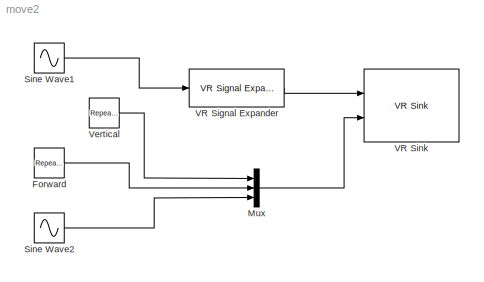
MODEL move2
KIND model
BLOCK [Reference] Forward  REF=simulink/Sources/Repeating\nSequence
  FunctionWithSeparateData = off
  Ports = [0, 1]
  RTWMemSecDataConstants = Inherit from model
  RTWMemSecDataInternal = Inherit from model
  RTWMemSecDataParameters = Inherit from model
  RTWMemSecFuncExecute = Inherit from model
  RTWMemSecFuncInitTerm = Inherit from model
  SID = 68
  ShowPortLabels = FromPortIcon
  SourceBlock = simulink/Sources/Repeating\nSequence
  SourceType = Repeating table
  SystemSampleTime = -1
  rep_seq_t = [0 32]
  rep_seq_y = [2 2]
BLOCK [Mux] Mux
  DisplayOption = bar
  Inputs = 3
  Ports = [3, 1]
  SID = 71
BLOCK [Sin] Sine Wave1
  Amplitude = 10
  Bias = 0
  Frequency = 0.03
  Offset = 0
  Phase = 0
  Ports = [0, 1]
  SID = 76
  SampleTime = 0
  Samples = 10
BLOCK [Sin] Sine Wave2
  Amplitude = 10
  Bias = 0
  Frequency = 0.03
  Offset = 0
  Phase = 0
  Ports = [0, 1]
  SID = 78
  SampleTime = 0
  Samples = 10
BLOCK [Reference] VR Signal Expander  REF=vrlib/VR Signal Expander
  FunctionWithSeparateData = off
  Ports = [1, 1]
  RTWMemSecDataConstants = Inherit from model
  RTWMemSecDataInternal = Inherit from model
  RTWMemSecDataParameters = Inherit from model
  RTWMemSecFuncExecute = Inherit from model
  RTWMemSecFuncInitTerm = Inherit from model
  SID = 69
  ShowPortLabels = FromPortIcon
  SourceBlock = vrlib/VR Signal Expander
  SourceType = VR Signal Expander
  SystemSampleTime = -1
  outidx = [2 4]
  outwidth = 4
BLOCK [Reference] VR Sink  REF=vrlib/VR Sink
  AutoView = on
  FieldsWritten = Falter.rotation.4.1.1.double#Falter.translation.3.1.1.double
  InstantiateOnLoad = on
  Ports = [2]
  RemoteChange = off
  RemoteView = off
  SID = 74
  SampleTime = 0.1
  SourceBlock = vrlib/VR Sink
  SourceType = Virtual Reality Sink
  VideoDimensions = []
  ViewEnable = on
  WorldDescription = Falter in a room
  WorldFileName = room.wrl
BLOCK [Reference] Vertical  REF=simulink/Sources/Repeating\nSequence
  FunctionWithSeparateData = off
  Ports = [0, 1]
  RTWMemSecDataConstants = Inherit from model
  RTWMemSecDataInternal = Inherit from model
  RTWMemSecDataParameters = Inherit from model
  RTWMemSecFuncExecute = Inherit from model
  RTWMemSecFuncInitTerm = Inherit from model
  SID = 66
  ShowPortLabels = FromPortIcon
  SourceBlock = simulink/Sources/Repeating\nSequence
  SourceType = Repeating table
  SystemSampleTime = -1
  rep_seq_t = [0 2 4 8 16 32]
  rep_seq_y = [0 0 0 0 0 0]
LINE Forward:1 -> Mux:2
LINE Mux:1 -> VR Sink:2
LINE Sine Wave1:1 -> VR Signal Expander:1
LINE Sine Wave2:1 -> Mux:3
LINE VR Signal Expander:1 -> VR Sink:1
LINE Vertical:1 -> Mux:1
